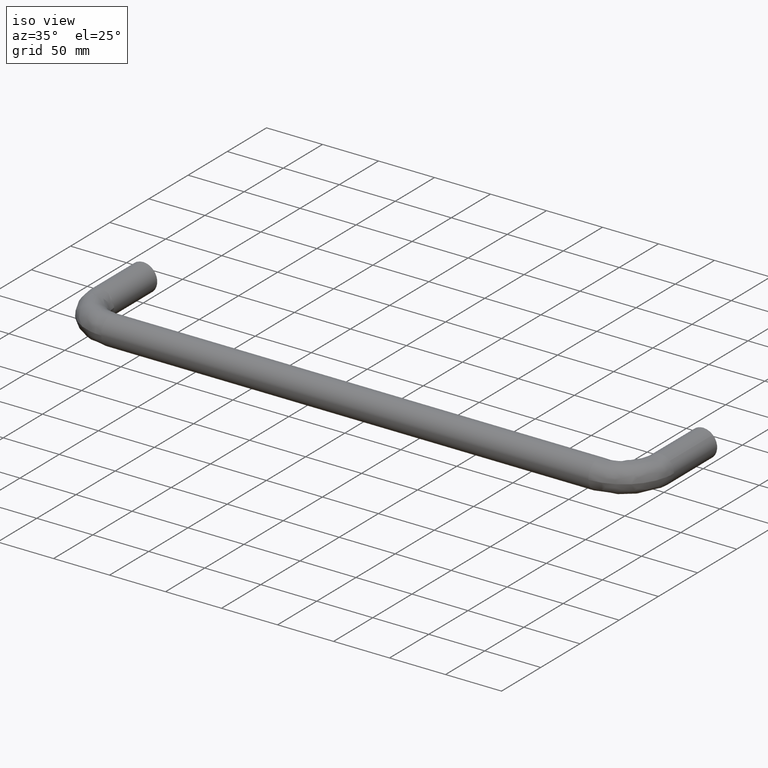
[diagram: clean part render]
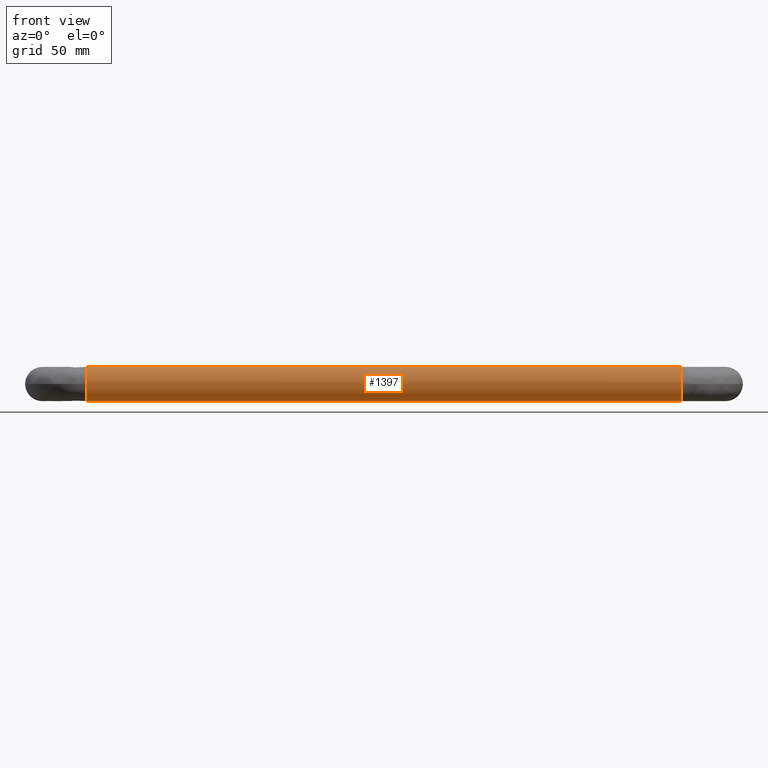
[diagram: tour spotlight — one face highlighted and labeled with its STEP entity id]
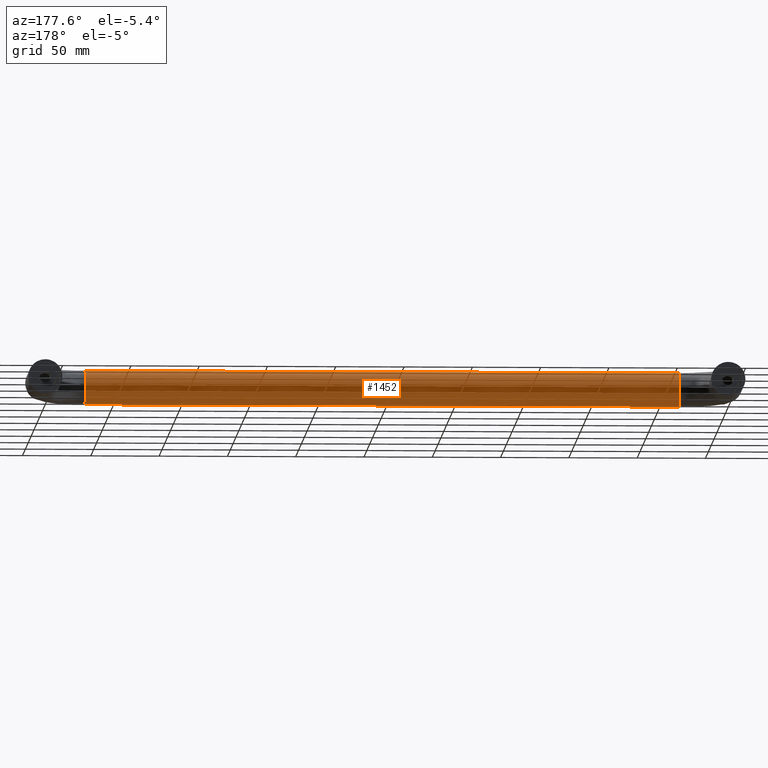
[diagram: tour spotlight — one face highlighted and labeled with its STEP entity id]
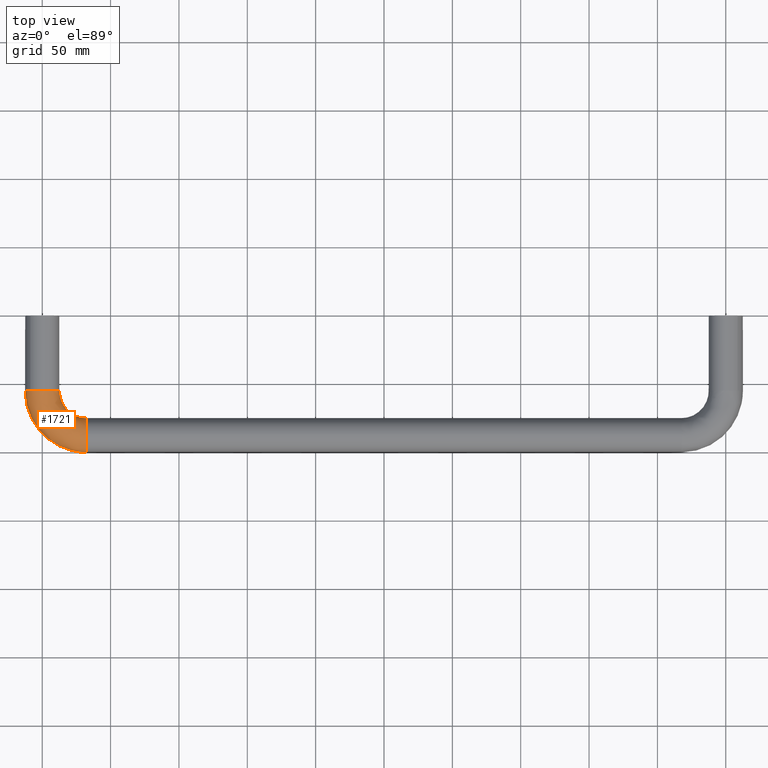
[diagram: tour spotlight — one face highlighted and labeled with its STEP entity id]
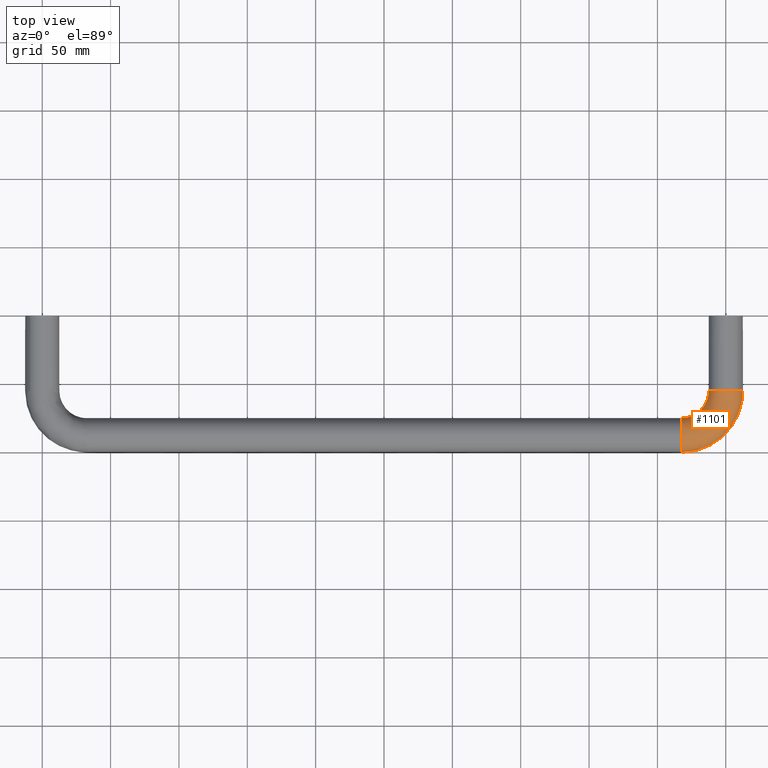
[diagram: tour spotlight — one face highlighted and labeled with its STEP entity id]
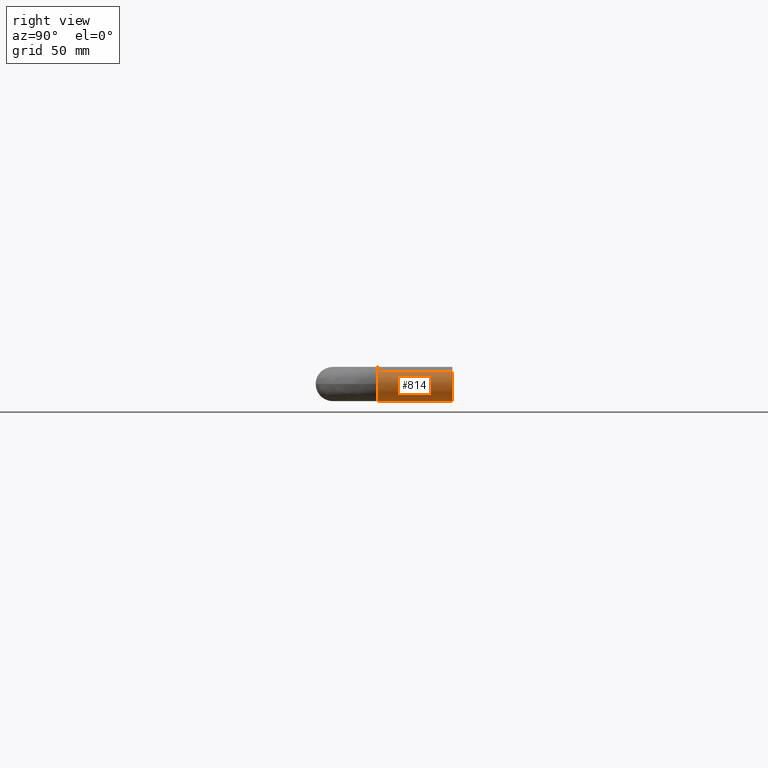
[diagram: tour spotlight — one face highlighted and labeled with its STEP entity id]
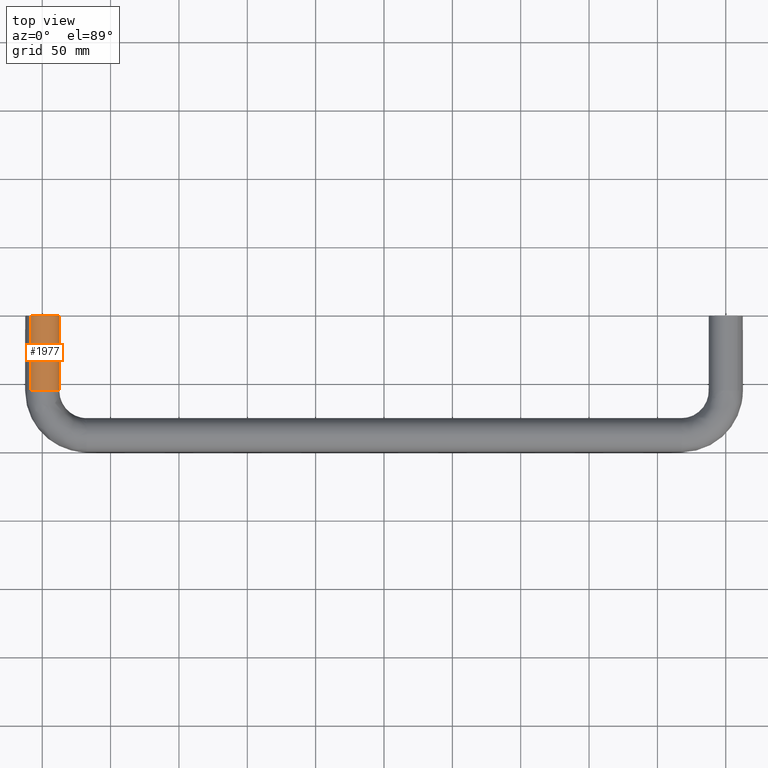
[diagram: tour spotlight — one face highlighted and labeled with its STEP entity id]
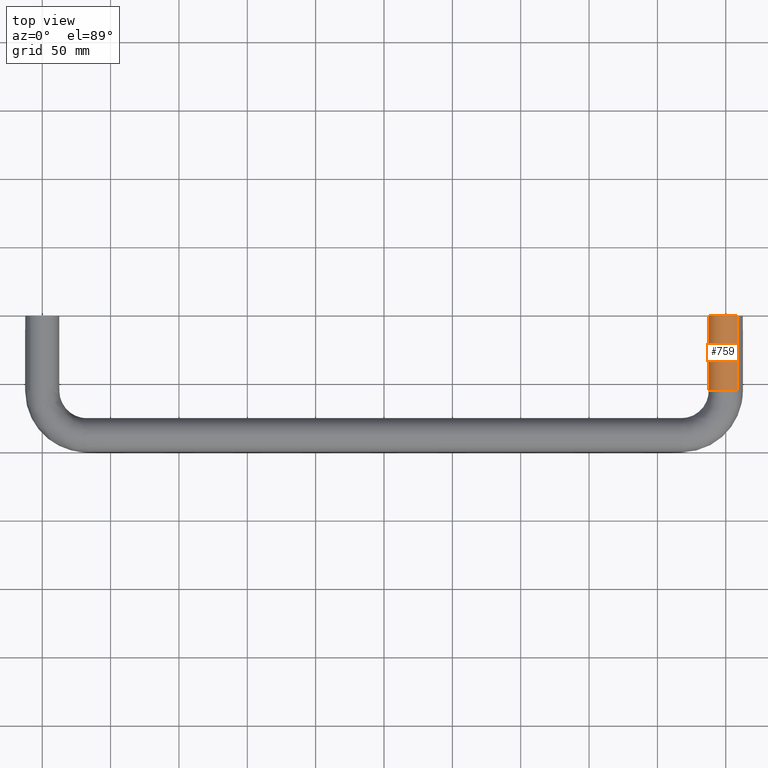
[diagram: tour spotlight — one face highlighted and labeled with its STEP entity id]
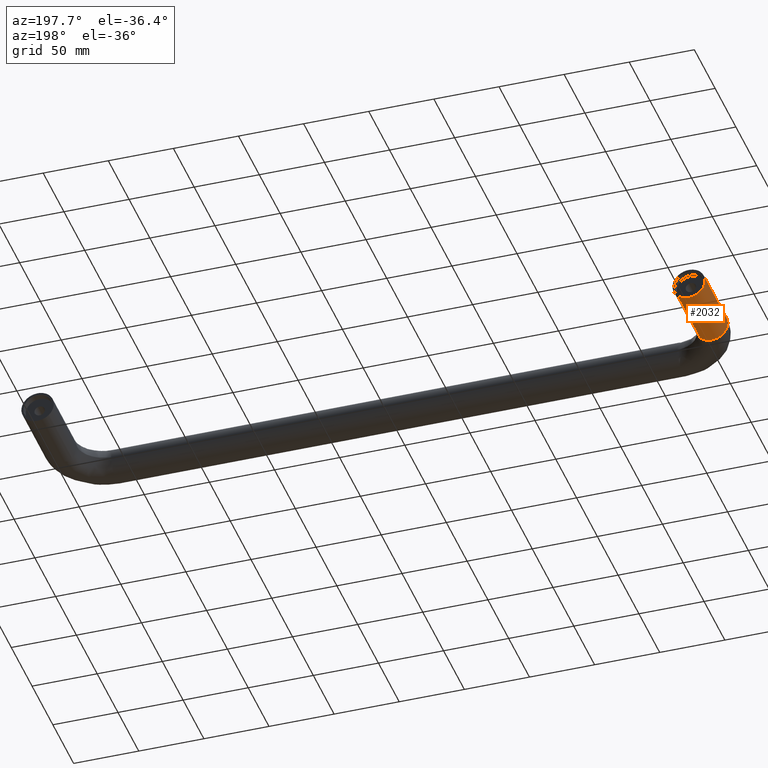
[diagram: tour spotlight — one face highlighted and labeled with its STEP entity id]
A machine part: a face-by-face anatomy tour. The part has 34 B-rep faces; the first image is the clean iso view, then the 8 largest visible faces are spotlighted one at a time (largest first), each with its STEP entity span.

Face 1 — front view, entity #1397. In plain terms, the highlighted face is a freeform B-spline surface patch.
Definition (entity closure, byte-faithful):
#1019=CARTESIAN_POINT('',(467.500095764886620,-99.999999999796216,-1.530758E-015));
#1020=VERTEX_POINT('',#1019);
#1056=CARTESIAN_POINT('',(467.499999999979710,-86.736893253879799,12.476684980155021));
#1057=VERTEX_POINT('',#1056);
#1071=CARTESIAN_POINT('',(467.500000000000000,-87.500000000000000,12.500000000000000));
#1072=VERTEX_POINT('',#1071);
#1073=CARTESIAN_POINT('',(467.499999999979590,-86.736893253879799,12.476684980155014));
#1074=CARTESIAN_POINT('',(467.499999999990050,-87.118090457797678,12.499999999999996));
#1075=CARTESIAN_POINT('',(467.500000000000000,-87.500000000000000,12.500000000000000));
#1083=(BOUNDED_CURVE()B_SPLINE_CURVE(2,(#1073,#1074,#1075),.UNSPECIFIED.,.F.,.U.)B_SPLINE_CURVE_WITH_KNOTS((3,3),(0.985777282953620,1.0),.UNSPECIFIED.)CURVE()GEOMETRIC_REPRESENTATION_ITEM()RATIONAL_B_SPLINE_CURVE((0.976072041615865,0.987502787872039,1.0))REPRESENTATION_ITEM(''));
#1084=EDGE_CURVE('',#1057,#1072,#1083,.T.);
#1086=CARTESIAN_POINT('',(467.500000000000000,-87.500000000000000,12.500000000000000));
#1087=CARTESIAN_POINT('',(467.500047882443480,-99.999999999898094,12.499999999999998));
#1088=CARTESIAN_POINT('',(467.500095764886620,-99.999999999796216,-1.530758E-015));
#1096=(BOUNDED_CURVE()B_SPLINE_CURVE(2,(#1086,#1087,#1088),.UNSPECIFIED.,.F.,.U.)CURVE()GEOMETRIC_REPRESENTATION_ITEM()QUASI_UNIFORM_CURVE()RATIONAL_B_SPLINE_CURVE((1.0,0.707106781186547,1.0))REPRESENTATION_ITEM(''));
#1097=EDGE_CURVE('',#1072,#1020,#1096,.T.);
#1146=CARTESIAN_POINT('',(467.500050805293090,-88.263106746120030,-12.476684980151720));
#1147=VERTEX_POINT('',#1146);
#1148=CARTESIAN_POINT('',(467.500095764886620,-99.999999999796216,-1.530758E-015));
#1149=CARTESIAN_POINT('',(467.500095764886790,-99.999999999796330,-11.758825834394509));
#1150=CARTESIAN_POINT('',(467.500050805293090,-88.263106746120030,-12.476684980151729));
#1158=(BOUNDED_CURVE()B_SPLINE_CURVE(2,(#1148,#1149,#1150),.UNSPECIFIED.,.F.,.U.)B_SPLINE_CURVE_WITH_KNOTS((3,3),(0.0,0.319110616284967),.UNSPECIFIED.)CURVE()GEOMETRIC_REPRESENTATION_ITEM()RATIONAL_B_SPLINE_CURVE((1.0,0.719603993316254,0.976072041612671))REPRESENTATION_ITEM(''));
#1159=EDGE_CURVE('',#1020,#1147,#1158,.T.);
#1317=CARTESIAN_POINT('',(21.624997604057420,-86.736893255814309,12.476684980273340));
#1318=CARTESIAN_POINT('',(21.624997604057427,-99.213578236087642,13.239791724459032));
#1319=CARTESIAN_POINT('',(21.624997604057420,-99.976684980273333,0.763106744185696));
#1320=CARTESIAN_POINT('',(21.624997604057427,-100.739791724459040,-11.713578236087638));
#1321=CARTESIAN_POINT('',(21.624997604057420,-88.263106744185691,-12.476684980273340));
#1322=CARTESIAN_POINT('',(478.646973218907420,-86.736893255814309,12.476684980273340));
#1323=CARTESIAN_POINT('',(478.646973218907480,-99.213578236087642,13.239791724459032));
#1324=CARTESIAN_POINT('',(478.646973218907420,-99.976684980273333,0.763106744185696));
#1325=CARTESIAN_POINT('',(478.646973218907480,-100.739791724459040,-11.713578236087638));
#1326=CARTESIAN_POINT('',(478.646973218907420,-88.263106744185691,-12.476684980273340));
#1334=(BOUNDED_SURFACE()B_SPLINE_SURFACE(2,1,((#1317,#1322),(#1318,#1323),(#1319,#1324),(#1320,#1325),(#1321,#1326)),.UNSPECIFIED.,.F.,.F.,.U.)B_SPLINE_SURFACE_WITH_KNOTS((3,2,3),(2,2),(0.0,20.710678118654752,41.421356237309503),(0.0,457.021975614850020),.UNSPECIFIED.)GEOMETRIC_REPRESENTATION_ITEM()RATIONAL_B_SPLINE_SURFACE(((1.0,1.0),(0.707106781186548,0.707106781186548),(1.0,1.0),(0.707106781186548,0.707106781186548),(1.0,1.0)))REPRESENTATION_ITEM('')SURFACE());
#1335=ORIENTED_EDGE('',*,*,#1084,.F.);
#1336=CARTESIAN_POINT('',(32.499999999944137,-86.736893253879785,12.476684980155021));
#1337=VERTEX_POINT('',#1336);
#1338=CARTESIAN_POINT('',(32.499999999944137,-86.736893253879785,12.476684980155021));
#1339=CARTESIAN_POINT('',(467.499999999979710,-86.736893253879799,12.476684980155021));
#1340=QUASI_UNIFORM_CURVE('',1,(#1338,#1339),.UNSPECIFIED.,.F.,.U.);
#1341=EDGE_CURVE('',#1337,#1057,#1340,.T.);
#1342=ORIENTED_EDGE('',*,*,#1341,.F.);
#1343=CARTESIAN_POINT('',(32.500000000000000,-87.500000000000000,12.500000000000000));
#1344=VERTEX_POINT('',#1343);
#1345=CARTESIAN_POINT('',(32.499999999944130,-86.736893253879785,12.476684980155019));
#1346=CARTESIAN_POINT('',(32.499999999972871,-87.118090457797678,12.500000000000000));
#1347=CARTESIAN_POINT('',(32.500000000000000,-87.500000000000000,12.500000000000000));
#1355=(BOUNDED_CURVE()B_SPLINE_CURVE(2,(#1345,#1346,#1347),.UNSPECIFIED.,.F.,.U.)B_SPLINE_CURVE_WITH_KNOTS((3,3),(0.985777282953620,1.0),.UNSPECIFIED.)CURVE()GEOMETRIC_REPRESENTATION_ITEM()RATIONAL_B_SPLINE_CURVE((0.976072041615864,0.987502787872038,1.0))REPRESENTATION_ITEM(''));
#1356=EDGE_CURVE('',#1337,#1344,#1355,.T.);
#1357=ORIENTED_EDGE('',*,*,#1356,.T.);
#1358=CARTESIAN_POINT('',(32.500077566518513,-99.999999999866304,-1.530758E-015));
#1359=VERTEX_POINT('',#1358);
#1360=CARTESIAN_POINT('',(32.500000000000000,-87.500000000000000,12.500000000000000));
#1361=CARTESIAN_POINT('',(32.500038783259257,-99.999999999933152,12.499999999999998));
#1362=CARTESIAN_POINT('',(32.500077566518513,-99.999999999866304,-1.530758E-015));
#1370=(BOUNDED_CURVE()B_SPLINE_CURVE(2,(#1360,#1361,#1362),.UNSPECIFIED.,.F.,.U.)CURVE()GEOMETRIC_REPRESENTATION_ITEM()QUASI_UNIFORM_CURVE()RATIONAL_B_SPLINE_CURVE((1.0,0.707106781186547,1.0))REPRESENTATION_ITEM(''));
#1371=EDGE_CURVE('',#1344,#1359,#1370,.T.);
#1372=ORIENTED_EDGE('',*,*,#1371,.T.);
#1373=CARTESIAN_POINT('',(32.500041150086830,-88.263106746120087,-12.476684980152861));
#1374=VERTEX_POINT('',#1373);
#1375=CARTESIAN_POINT('',(32.500077566518513,-99.999999999866304,-1.530758E-015));
#1376=CARTESIAN_POINT('',(32.500077566518527,-99.999999999866361,-11.758825834428929));
#1377=CARTESIAN_POINT('',(32.500041150086830,-88.263106746120087,-12.476684980152852));
#1385=(BOUNDED_CURVE()B_SPLINE_CURVE(2,(#1375,#1376,#1377),.UNSPECIFIED.,.F.,.U.)B_SPLINE_CURVE_WITH_KNOTS((3,3),(0.0,0.319110616285650),.UNSPECIFIED.)CURVE()GEOMETRIC_REPRESENTATION_ITEM()RATIONAL_B_SPLINE_CURVE((1.0,0.719603993315654,0.976072041613770))REPRESENTATION_ITEM(''));
#1386=EDGE_CURVE('',#1359,#1374,#1385,.T.);
#1387=ORIENTED_EDGE('',*,*,#1386,.T.);
#1388=CARTESIAN_POINT('',(32.500041150086830,-88.263106746120087,-12.476684980152861));
#1389=CARTESIAN_POINT('',(467.500050805293090,-88.263106746120030,-12.476684980151720));
#1390=QUASI_UNIFORM_CURVE('',1,(#1388,#1389),.UNSPECIFIED.,.F.,.U.);
#1391=EDGE_CURVE('',#1374,#1147,#1390,.T.);
#1392=ORIENTED_EDGE('',*,*,#1391,.T.);
#1393=ORIENTED_EDGE('',*,*,#1159,.F.);
#1394=ORIENTED_EDGE('',*,*,#1097,.F.);
#1395=EDGE_LOOP('',(#1335,#1342,#1357,#1372,#1387,#1392,#1393,#1394));
#1396=FACE_OUTER_BOUND('',#1395,.T.);
#1397=ADVANCED_FACE('',(#1396),#1334,.T.);

Face 2 — auxiliary view, entity #1452. In plain terms, the highlighted face is a freeform B-spline surface patch.
Definition (entity closure, byte-faithful):
#1039=CARTESIAN_POINT('',(467.499999999353520,-75.0,-8.232085E-016));
#1040=VERTEX_POINT('',#1039);
#1056=CARTESIAN_POINT('',(467.499999999979710,-86.736893253879799,12.476684980155021));
#1057=VERTEX_POINT('',#1056);
#1058=CARTESIAN_POINT('',(467.499999999353520,-75.0,-8.232085E-016));
#1059=CARTESIAN_POINT('',(467.499999999657580,-75.0,11.758825834494591));
#1060=CARTESIAN_POINT('',(467.499999999979710,-86.736893253879799,12.476684980155017));
#1068=(BOUNDED_CURVE()B_SPLINE_CURVE(2,(#1058,#1059,#1060),.UNSPECIFIED.,.F.,.U.)B_SPLINE_CURVE_WITH_KNOTS((3,3),(0.666666666666667,0.985777282953620),.UNSPECIFIED.)CURVE()GEOMETRIC_REPRESENTATION_ITEM()RATIONAL_B_SPLINE_CURVE((1.0,0.719603993314509,0.976072041615865))REPRESENTATION_ITEM(''));
#1069=EDGE_CURVE('',#1040,#1057,#1068,.T.);
#1146=CARTESIAN_POINT('',(467.500050805293090,-88.263106746120030,-12.476684980151720));
#1147=VERTEX_POINT('',#1146);
#1161=CARTESIAN_POINT('',(467.500050805293090,-88.263106746120030,-12.476684980151729));
#1162=CARTESIAN_POINT('',(467.500049345070980,-87.881909542151533,-12.500000000003249));
#1163=CARTESIAN_POINT('',(467.500047882120100,-87.499999999898307,-12.500000000003199));
#1164=CARTESIAN_POINT('',(467.499999999353460,-75.000000000000085,-12.500000000001547));
#1165=CARTESIAN_POINT('',(467.499999999353520,-75.0,-8.232085E-016));
#1173=(BOUNDED_CURVE()B_SPLINE_CURVE(2,(#1161,#1162,#1163,#1164,#1165),.UNSPECIFIED.,.F.,.U.)B_SPLINE_CURVE_WITH_KNOTS((3,2,3),(0.319110616284967,0.333333333333333,0.666666666666667),.UNSPECIFIED.)CURVE()GEOMETRIC_REPRESENTATION_ITEM()RATIONAL_B_SPLINE_CURVE((0.976072041612671,0.987502787870293,1.0,0.707106781186547,1.0))REPRESENTATION_ITEM(''));
#1174=EDGE_CURVE('',#1147,#1040,#1173,.T.);
#1336=CARTESIAN_POINT('',(32.499999999944137,-86.736893253879785,12.476684980155021));
#1337=VERTEX_POINT('',#1336);
#1338=CARTESIAN_POINT('',(32.499999999944137,-86.736893253879785,12.476684980155021));
#1339=CARTESIAN_POINT('',(467.499999999979710,-86.736893253879799,12.476684980155021));
#1340=QUASI_UNIFORM_CURVE('',1,(#1338,#1339),.UNSPECIFIED.,.F.,.U.);
#1341=EDGE_CURVE('',#1337,#1057,#1340,.T.);
#1373=CARTESIAN_POINT('',(32.500041150086830,-88.263106746120087,-12.476684980152861));
#1374=VERTEX_POINT('',#1373);
#1388=CARTESIAN_POINT('',(32.500041150086830,-88.263106746120087,-12.476684980152861));
#1389=CARTESIAN_POINT('',(467.500050805293090,-88.263106746120030,-12.476684980151720));
#1390=QUASI_UNIFORM_CURVE('',1,(#1388,#1389),.UNSPECIFIED.,.F.,.U.);
#1391=EDGE_CURVE('',#1374,#1147,#1390,.T.);
#1398=CARTESIAN_POINT('',(21.624997604057420,-88.263106744185691,-12.476684980273340));
#1399=CARTESIAN_POINT('',(21.624997604057427,-75.786421763912358,-13.239791724459032));
#1400=CARTESIAN_POINT('',(21.624997604057420,-75.023315019726667,-0.763106744185696));
#1401=CARTESIAN_POINT('',(21.624997604057427,-74.260208275540990,11.713578236087638));
#1402=CARTESIAN_POINT('',(21.624997604057420,-86.736893255814309,12.476684980273340));
#1403=CARTESIAN_POINT('',(478.646973218907420,-88.263106744185691,-12.476684980273340));
#1404=CARTESIAN_POINT('',(478.646973218907480,-75.786421763912358,-13.239791724459032));
#1405=CARTESIAN_POINT('',(478.646973218907420,-75.023315019726667,-0.763106744185696));
#1406=CARTESIAN_POINT('',(478.646973218907480,-74.260208275540990,11.713578236087638));
#1407=CARTESIAN_POINT('',(478.646973218907420,-86.736893255814309,12.476684980273340));
#1415=(BOUNDED_SURFACE()B_SPLINE_SURFACE(2,1,((#1398,#1403),(#1399,#1404),(#1400,#1405),(#1401,#1406),(#1402,#1407)),.UNSPECIFIED.,.F.,.F.,.U.)B_SPLINE_SURFACE_WITH_KNOTS((3,2,3),(2,2),(0.0,20.710678118654759,41.421356237309517),(0.0,457.021975614850020),.UNSPECIFIED.)GEOMETRIC_REPRESENTATION_ITEM()RATIONAL_B_SPLINE_SURFACE(((1.0,1.0),(0.707106781186548,0.707106781186548),(1.0,1.0),(0.707106781186548,0.707106781186548),(1.0,1.0)))REPRESENTATION_ITEM('')SURFACE());
#1416=ORIENTED_EDGE('',*,*,#1069,.F.);
#1417=ORIENTED_EDGE('',*,*,#1174,.F.);
#1418=ORIENTED_EDGE('',*,*,#1391,.F.);
#1419=CARTESIAN_POINT('',(32.499999998223998,-75.0,-8.839280E-016));
#1420=VERTEX_POINT('',#1419);
#1421=CARTESIAN_POINT('',(32.500041150086822,-88.263106746120101,-12.476684980152861));
#1422=CARTESIAN_POINT('',(32.500039967334160,-87.881909542168998,-12.500000000002128));
#1423=CARTESIAN_POINT('',(32.500038782371277,-87.499999999933280,-12.500000000002100));
#1424=CARTESIAN_POINT('',(32.499999998224013,-75.000000000000057,-12.500000000001014));
#1425=CARTESIAN_POINT('',(32.499999998223998,-75.0,-8.839280E-016));
#1433=(BOUNDED_CURVE()B_SPLINE_CURVE(2,(#1421,#1422,#1423,#1424,#1425),.UNSPECIFIED.,.F.,.U.)B_SPLINE_CURVE_WITH_KNOTS((3,2,3),(0.319110616285650,0.333333333333333,0.666666666666667),.UNSPECIFIED.)CURVE()GEOMETRIC_REPRESENTATION_ITEM()RATIONAL_B_SPLINE_CURVE((0.976072041613770,0.987502787870893,1.0,0.707106781186547,1.0))REPRESENTATION_ITEM(''));
#1434=EDGE_CURVE('',#1374,#1420,#1433,.T.);
#1435=ORIENTED_EDGE('',*,*,#1434,.T.);
#1436=CARTESIAN_POINT('',(32.499999998223998,-75.0,-8.839280E-016));
#1437=CARTESIAN_POINT('',(32.499999999059348,-74.999999999999986,11.758825834494576));
#1438=CARTESIAN_POINT('',(32.499999999944130,-86.736893253879785,12.476684980155019));
#1446=(BOUNDED_CURVE()B_SPLINE_CURVE(2,(#1436,#1437,#1438),.UNSPECIFIED.,.F.,.U.)B_SPLINE_CURVE_WITH_KNOTS((3,3),(0.666666666666667,0.985777282953620),.UNSPECIFIED.)CURVE()GEOMETRIC_REPRESENTATION_ITEM()RATIONAL_B_SPLINE_CURVE((1.0,0.719603993314509,0.976072041615864))REPRESENTATION_ITEM(''));
#1447=EDGE_CURVE('',#1420,#1337,#1446,.T.);
#1448=ORIENTED_EDGE('',*,*,#1447,.T.);
#1449=ORIENTED_EDGE('',*,*,#1341,.T.);
#1450=EDGE_LOOP('',(#1416,#1417,#1418,#1435,#1448,#1449));
#1451=FACE_OUTER_BOUND('',#1450,.T.);
#1452=ADVANCED_FACE('',(#1451),#1415,.T.);

Face 3 — top view, entity #1721. In plain terms, the highlighted face is a freeform B-spline surface patch.
Definition (entity closure, byte-faithful):
#1336=CARTESIAN_POINT('',(32.499999999944137,-86.736893253879785,12.476684980155021));
#1337=VERTEX_POINT('',#1336);
#1343=CARTESIAN_POINT('',(32.500000000000000,-87.500000000000000,12.500000000000000));
#1344=VERTEX_POINT('',#1343);
#1345=CARTESIAN_POINT('',(32.499999999944130,-86.736893253879785,12.476684980155019));
#1346=CARTESIAN_POINT('',(32.499999999972871,-87.118090457797678,12.500000000000000));
#1347=CARTESIAN_POINT('',(32.500000000000000,-87.500000000000000,12.500000000000000));
#1355=(BOUNDED_CURVE()B_SPLINE_CURVE(2,(#1345,#1346,#1347),.UNSPECIFIED.,.F.,.U.)B_SPLINE_CURVE_WITH_KNOTS((3,3),(0.985777282953620,1.0),.UNSPECIFIED.)CURVE()GEOMETRIC_REPRESENTATION_ITEM()RATIONAL_B_SPLINE_CURVE((0.976072041615864,0.987502787872038,1.0))REPRESENTATION_ITEM(''));
#1356=EDGE_CURVE('',#1337,#1344,#1355,.T.);
#1358=CARTESIAN_POINT('',(32.500077566518513,-99.999999999866304,-1.530758E-015));
#1359=VERTEX_POINT('',#1358);
#1360=CARTESIAN_POINT('',(32.500000000000000,-87.500000000000000,12.500000000000000));
#1361=CARTESIAN_POINT('',(32.500038783259257,-99.999999999933152,12.499999999999998));
#1362=CARTESIAN_POINT('',(32.500077566518513,-99.999999999866304,-1.530758E-015));
#1370=(BOUNDED_CURVE()B_SPLINE_CURVE(2,(#1360,#1361,#1362),.UNSPECIFIED.,.F.,.U.)CURVE()GEOMETRIC_REPRESENTATION_ITEM()QUASI_UNIFORM_CURVE()RATIONAL_B_SPLINE_CURVE((1.0,0.707106781186547,1.0))REPRESENTATION_ITEM(''));
#1371=EDGE_CURVE('',#1344,#1359,#1370,.T.);
#1419=CARTESIAN_POINT('',(32.499999998223998,-75.0,-8.839280E-016));
#1420=VERTEX_POINT('',#1419);
#1436=CARTESIAN_POINT('',(32.499999998223998,-75.0,-8.839280E-016));
#1437=CARTESIAN_POINT('',(32.499999999059348,-74.999999999999986,11.758825834494576));
#1438=CARTESIAN_POINT('',(32.499999999944130,-86.736893253879785,12.476684980155019));
#1446=(BOUNDED_CURVE()B_SPLINE_CURVE(2,(#1436,#1437,#1438),.UNSPECIFIED.,.F.,.U.)B_SPLINE_CURVE_WITH_KNOTS((3,3),(0.666666666666667,0.985777282953620),.UNSPECIFIED.)CURVE()GEOMETRIC_REPRESENTATION_ITEM()RATIONAL_B_SPLINE_CURVE((1.0,0.719603993314509,0.976072041615864))REPRESENTATION_ITEM(''));
#1447=EDGE_CURVE('',#1420,#1337,#1446,.T.);
#1614=CARTESIAN_POINT('',(-12.392236807027519,-51.887593461361078,-0.349459221148228));
#1615=CARTESIAN_POINT('',(-15.971075581043571,-103.507481719133300,-0.349459221148228));
#1616=CARTESIAN_POINT('',(35.646111106952574,-99.889887334484470,-0.349459221148228));
#1617=CARTESIAN_POINT('',(-12.392236807027521,-51.887593461361078,-0.175747192080917));
#1618=CARTESIAN_POINT('',(-15.971075581043571,-103.507481719133300,-0.175747192080917));
#1619=CARTESIAN_POINT('',(35.646111106952574,-99.889887334484470,-0.175747192080917));
#1620=CARTESIAN_POINT('',(-12.392236807027531,-51.887593461361107,12.499999999999996));
#1621=CARTESIAN_POINT('',(-15.971075581043580,-103.507481719133300,12.499999999999995));
#1622=CARTESIAN_POINT('',(35.646111106952574,-99.889887334484484,12.499999999999995));
#1623=CARTESIAN_POINT('',(0.077828972702343,-52.752150833205214,12.500000000000000));
#1624=CARTESIAN_POINT('',(-2.506887919642578,-90.033181241596253,12.499999999999996));
#1625=CARTESIAN_POINT('',(34.772191355021320,-87.420474186016563,12.500000000000000));
#1626=CARTESIAN_POINT('',(12.547894752432207,-53.616708205049378,12.500000000000000));
#1627=CARTESIAN_POINT('',(10.957299741758410,-76.558880764059268,12.500000000000000));
#1628=CARTESIAN_POINT('',(33.898271603090024,-74.951061037548655,12.499999999999996));
#1629=CARTESIAN_POINT('',(12.547894752432210,-53.616708205049363,-0.175747192080917));
#1630=CARTESIAN_POINT('',(10.957299741758412,-76.558880764059225,-0.175747192080917));
#1631=CARTESIAN_POINT('',(33.898271603090038,-74.951061037548669,-0.175747192080917));
#1632=CARTESIAN_POINT('',(12.547894752432205,-53.616708205049363,-0.349459221148230));
#1633=CARTESIAN_POINT('',(10.957299741758412,-76.558880764059211,-0.349459221148230));
#1634=CARTESIAN_POINT('',(33.898271603090038,-74.951061037548655,-0.349459221148230));
#1642=(BOUNDED_SURFACE()B_SPLINE_SURFACE(2,2,((#1614,#1617,#1620,#1623,#1626,#1629,#1632),(#1615,#1618,#1621,#1624,#1627,#1630,#1633),(#1616,#1619,#1622,#1625,#1628,#1631,#1634)),.UNSPECIFIED.,.F.,.F.,.U.)B_SPLINE_SURFACE_WITH_KNOTS((3,3),(3,1,2,1,3),(0.0,82.006278072936880),(0.0,0.414213562373096,21.124891681027862,41.835569799682617,42.249783362055723),.UNSPECIFIED.)GEOMETRIC_REPRESENTATION_ITEM()RATIONAL_B_SPLINE_SURFACE(((0.932283909603369,0.926885957839421,0.651590417878037,0.921488006075472,0.651590417878037,0.926885957839421,0.932283909603369),(0.608398006678249,0.604875363994510,0.425220587123830,0.601352721310771,0.425220587123830,0.604875363994510,0.608398006678249),(0.921984993315845,0.916646672585714,0.644392315349019,0.911308351855582,0.644392315349019,0.916646672585714,0.921984993315845)))REPRESENTATION_ITEM('')SURFACE());
#1643=CARTESIAN_POINT('',(-12.499999999999989,-55.000000000535692,-1.530758E-015));
#1644=VERTEX_POINT('',#1643);
#1645=CARTESIAN_POINT('',(-12.499999999999998,-55.000000000535699,-1.530758E-015));
#1646=CARTESIAN_POINT('',(-12.499999999464299,-100.000077566551940,-1.530758E-015));
#1647=CARTESIAN_POINT('',(32.500077566518513,-99.999999999866304,-1.530758E-015));
#1655=(BOUNDED_CURVE()B_SPLINE_CURVE(2,(#1645,#1646,#1647),.UNSPECIFIED.,.F.,.U.)B_SPLINE_CURVE_WITH_KNOTS((3,3),(-1.747842683656804,-0.278271349074432),.UNSPECIFIED.)CURVE()GEOMETRIC_REPRESENTATION_ITEM()RATIONAL_B_SPLINE_CURVE((0.893710737959599,0.628667701523981,0.884455659746061))REPRESENTATION_ITEM(''));
#1656=EDGE_CURVE('',#1644,#1359,#1655,.T.);
#1657=ORIENTED_EDGE('',*,*,#1656,.T.);
#1658=ORIENTED_EDGE('',*,*,#1371,.F.);
#1659=ORIENTED_EDGE('',*,*,#1356,.F.);
#1660=ORIENTED_EDGE('',*,*,#1447,.F.);
#1661=CARTESIAN_POINT('',(12.500000000000000,-55.000000001631861,-8.843090E-016));
#1662=VERTEX_POINT('',#1661);
#1663=CARTESIAN_POINT('',(12.500000000000007,-55.000000001631854,-1.768618E-015));
#1664=CARTESIAN_POINT('',(12.500000001631864,-74.999999998223998,-1.737922E-015));
#1665=CARTESIAN_POINT('',(32.499999998224006,-75.0,-1.767856E-015));
#1673=(BOUNDED_CURVE()B_SPLINE_CURVE(2,(#1663,#1664,#1665),.UNSPECIFIED.,.F.,.U.)B_SPLINE_CURVE_WITH_KNOTS((3,3),(-1.747842683584010,-0.278273131038123),.UNSPECIFIED.)CURVE()GEOMETRIC_REPRESENTATION_ITEM()RATIONAL_B_SPLINE_CURVE((0.893710737933342,0.628668022920892,0.884455039423276))REPRESENTATION_ITEM(''));
#1674=EDGE_CURVE('',#1662,#1420,#1673,.T.);
#1675=ORIENTED_EDGE('',*,*,#1674,.F.);
#1676=CARTESIAN_POINT('',(0.0,-55.0,12.500000000000000));
#1677=VERTEX_POINT('',#1676);
#1678=CARTESIAN_POINT('',(12.500000000000000,-55.000000001631861,-8.843090E-016));
#1679=CARTESIAN_POINT('',(12.499999999999998,-55.000000000815930,12.499999999999998));
#1680=CARTESIAN_POINT('',(0.0,-55.0,12.500000000000000));
#1688=(BOUNDED_CURVE()B_SPLINE_CURVE(2,(#1678,#1679,#1680),.UNSPECIFIED.,.F.,.U.)B_SPLINE_CURVE_WITH_KNOTS((3,3),(0.666666666666667,1.0),.UNSPECIFIED.)CURVE()GEOMETRIC_REPRESENTATION_ITEM()RATIONAL_B_SPLINE_CURVE((1.0,0.707106781186547,1.0))REPRESENTATION_ITEM(''));
#1689=EDGE_CURVE('',#1662,#1677,#1688,.T.);
#1690=ORIENTED_EDGE('',*,*,#1689,.T.);
#1691=CARTESIAN_POINT('',(-8.604431018127482,-55.000000000257970,9.067180755575738));
#1692=VERTEX_POINT('',#1691);
#1693=CARTESIAN_POINT('',(0.0,-55.0,12.500000000000000));
#1694=CARTESIAN_POINT('',(-4.986993383397497,-55.000000000106866,12.499999999999996));
#1695=CARTESIAN_POINT('',(-8.604431018127553,-55.000000000257934,9.067180755575810));
#1703=(BOUNDED_CURVE()B_SPLINE_CURVE(2,(#1693,#1694,#1695),.UNSPECIFIED.,.F.,.U.)B_SPLINE_CURVE_WITH_KNOTS((3,3),(0.0,0.484198028206789),.UNSPECIFIED.)CURVE()GEOMETRIC_REPRESENTATION_ITEM()RATIONAL_B_SPLINE_CURVE((1.0,0.858181680975387,0.853699662821412))REPRESENTATION_ITEM(''));
#1704=EDGE_CURVE('',#1677,#1692,#1703,.T.);
#1705=ORIENTED_EDGE('',*,*,#1704,.T.);
#1706=CARTESIAN_POINT('',(-8.604431018127553,-55.000000000257934,9.067180755575810));
#1707=CARTESIAN_POINT('',(-12.500000000000000,-55.000000000420613,5.370424786498387));
#1708=CARTESIAN_POINT('',(-12.499999999999989,-55.000000000535692,-1.530758E-015));
#1716=(BOUNDED_CURVE()B_SPLINE_CURVE(2,(#1706,#1707,#1708),.UNSPECIFIED.,.F.,.U.)B_SPLINE_CURVE_WITH_KNOTS((3,3),(0.484198028206789,1.0),.UNSPECIFIED.)CURVE()GEOMETRIC_REPRESENTATION_ITEM()RATIONAL_B_SPLINE_CURVE((0.853699662821412,0.848925100211161,1.0))REPRESENTATION_ITEM(''));
#1717=EDGE_CURVE('',#1692,#1644,#1716,.T.);
#1718=ORIENTED_EDGE('',*,*,#1717,.T.);
#1719=EDGE_LOOP('',(#1657,#1658,#1659,#1660,#1675,#1690,#1705,#1718));
#1720=FACE_OUTER_BOUND('',#1719,.T.);
#1721=ADVANCED_FACE('',(#1720),#1642,.T.);

Face 4 — top view, entity #1101. In plain terms, the highlighted face is a freeform B-spline surface patch.
Definition (entity closure, byte-faithful):
#700=CARTESIAN_POINT('',(487.500000000000000,-55.000000000781917,-8.731620E-016));
#701=VERTEX_POINT('',#700);
#715=CARTESIAN_POINT('',(500.0,-55.0,12.500000000000000));
#716=VERTEX_POINT('',#715);
#717=CARTESIAN_POINT('',(487.500000000000000,-55.000000000781917,-8.731620E-016));
#718=CARTESIAN_POINT('',(487.500000000000060,-55.000000000390955,12.499999999999998));
#719=CARTESIAN_POINT('',(500.0,-55.0,12.500000000000000));
#727=(BOUNDED_CURVE()B_SPLINE_CURVE(2,(#717,#718,#719),.UNSPECIFIED.,.F.,.U.)B_SPLINE_CURVE_WITH_KNOTS((3,3),(0.666666666666667,1.0),.UNSPECIFIED.)CURVE()GEOMETRIC_REPRESENTATION_ITEM()RATIONAL_B_SPLINE_CURVE((1.0,0.707106781186547,1.0))REPRESENTATION_ITEM(''));
#728=EDGE_CURVE('',#701,#716,#727,.T.);
#730=CARTESIAN_POINT('',(508.604431018473410,-55.000000000235659,9.067180755247492));
#731=VERTEX_POINT('',#730);
#732=CARTESIAN_POINT('',(500.0,-55.0,12.500000000000000));
#733=CARTESIAN_POINT('',(504.986993383673910,-55.000000000097607,12.500000000000000));
#734=CARTESIAN_POINT('',(508.604431018473580,-55.000000000235609,9.067180755247600));
#742=(BOUNDED_CURVE()B_SPLINE_CURVE(2,(#732,#733,#734),.UNSPECIFIED.,.F.,.U.)B_SPLINE_CURVE_WITH_KNOTS((3,3),(0.0,0.484198028229815),.UNSPECIFIED.)CURVE()GEOMETRIC_REPRESENTATION_ITEM()RATIONAL_B_SPLINE_CURVE((1.0,0.858181680968642,0.853699662820985))REPRESENTATION_ITEM(''));
#743=EDGE_CURVE('',#716,#731,#742,.T.);
#778=CARTESIAN_POINT('',(512.500000000000000,-55.000000000489337,-1.530758E-015));
#779=VERTEX_POINT('',#778);
#799=CARTESIAN_POINT('',(508.604431018473460,-55.000000000235609,9.067180755247600));
#800=CARTESIAN_POINT('',(512.500000000000000,-55.000000000384219,5.370424786215978));
#801=CARTESIAN_POINT('',(512.500000000000000,-55.000000000489337,-1.530758E-015));
#809=(BOUNDED_CURVE()B_SPLINE_CURVE(2,(#799,#800,#801),.UNSPECIFIED.,.F.,.U.)B_SPLINE_CURVE_WITH_KNOTS((3,3),(0.484198028229815,1.0),.UNSPECIFIED.)CURVE()GEOMETRIC_REPRESENTATION_ITEM()RATIONAL_B_SPLINE_CURVE((0.853699662820985,0.848925100217905,1.0))REPRESENTATION_ITEM(''));
#810=EDGE_CURVE('',#731,#779,#809,.T.);
#976=CARTESIAN_POINT('',(463.993650892548710,-99.863186644917164,-0.349459221148228));
#977=CARTESIAN_POINT('',(470.423751321872660,-100.365740711787880,-0.349459221148228));
#978=CARTESIAN_POINT('',(476.736146844641330,-99.041952630012062,-0.349459221148228));
#979=CARTESIAN_POINT('',(514.089081978320790,-91.208576192975286,-0.349459221148228));
#980=CARTESIAN_POINT('',(512.458932902165430,-53.077930204548828,-0.349459221148228));
#981=CARTESIAN_POINT('',(463.993650892548710,-99.863186644917164,-0.175747192080917));
#982=CARTESIAN_POINT('',(470.423751321872770,-100.365740711787860,-0.175747192080917));
#983=CARTESIAN_POINT('',(476.736146844641330,-99.041952630012034,-0.175747192080917));
#984=CARTESIAN_POINT('',(514.089081978320680,-91.208576192975286,-0.175747192080917));
#985=CARTESIAN_POINT('',(512.458932902165430,-53.077930204548828,-0.175747192080917));
#986=CARTESIAN_POINT('',(463.993650892548770,-99.863186644917164,12.499999999999991));
#987=CARTESIAN_POINT('',(470.423751321872660,-100.365740711787860,12.499999999999993));
#988=CARTESIAN_POINT('',(476.736146844641330,-99.041952630012020,12.499999999999995));
#989=CARTESIAN_POINT('',(514.089081978320790,-91.208576192975301,12.499999999999995));
#990=CARTESIAN_POINT('',(512.458932902165320,-53.077930204548828,12.499999999999995));
#991=CARTESIAN_POINT('',(464.967636755729640,-87.401190354662404,12.499999999999993));
#992=CARTESIAN_POINT('',(469.611598176908100,-87.764146069624587,12.499999999999993));
#993=CARTESIAN_POINT('',(474.170550498907570,-86.808076899453127,12.500000000000000));
#994=CARTESIAN_POINT('',(501.147670317676100,-81.150638361593266,12.499999999999996));
#995=CARTESIAN_POINT('',(499.970340429341720,-53.611838481063039,12.500000000000000));
#996=CARTESIAN_POINT('',(465.941622618910460,-74.939194064407630,12.499999999999996));
#997=CARTESIAN_POINT('',(468.799445031943380,-75.162551427461267,12.499999999999998));
#998=CARTESIAN_POINT('',(471.604954153173880,-74.574201168894220,12.499999999999996));
#999=CARTESIAN_POINT('',(488.206258657031360,-71.092700530211246,12.499999999999998));
#1000=CARTESIAN_POINT('',(487.481747956517950,-54.145746757577257,12.499999999999996));
#1001=CARTESIAN_POINT('',(465.941622618910570,-74.939194064407630,-0.175747192080917));
#1002=CARTESIAN_POINT('',(468.799445031943430,-75.162551427461295,-0.175747192080917));
#1003=CARTESIAN_POINT('',(471.604954153173940,-74.574201168894234,-0.175747192080917));
#1004=CARTESIAN_POINT('',(488.206258657031470,-71.092700530211246,-0.175747192080917));
#1005=CARTESIAN_POINT('',(487.481747956517950,-54.145746757577271,-0.175747192080917));
#1006=CARTESIAN_POINT('',(465.941622618910400,-74.939194064407644,-0.349459221148230));
#1007=CARTESIAN_POINT('',(468.799445031943380,-75.162551427461281,-0.349459221148230));
#1008=CARTESIAN_POINT('',(471.604954153173990,-74.574201168894248,-0.349459221148230));
#1009=CARTESIAN_POINT('',(488.206258657031470,-71.092700530211260,-0.349459221148230));
#1010=CARTESIAN_POINT('',(487.481747956518060,-54.145746757577271,-0.349459221148230));
#1018=(BOUNDED_SURFACE()B_SPLINE_SURFACE(2,2,((#976,#981,#986,#991,#996,#1001,#1006),(#977,#982,#987,#992,#997,#1002,#1007),(#978,#983,#988,#993,#998,#1003,#1008),(#979,#984,#989,#994,#999,#1004,#1009),(#980,#985,#990,#995,#1000,#1005,#1010)),.UNSPECIFIED.,.F.,.F.,.U.)B_SPLINE_SURFACE_WITH_KNOTS((3,2,3),(3,1,2,1,3),(0.0,13.905091249418451,79.957474205394348),(0.0,0.414213562373095,21.124891681027840,41.835569799682567,42.249783362055673),.UNSPECIFIED.)GEOMETRIC_REPRESENTATION_ITEM()RATIONAL_B_SPLINE_SURFACE(((0.931895286954577,0.926499585327406,0.651318802341702,0.921103883700236,0.651318802341702,0.926499585327406,0.931895286954577),(0.961163435269853,0.955598270187185,0.671774850971116,0.950033105104517,0.671774850971116,0.955598270187185,0.961163435269854),(1.011715728752538,1.005857864376269,0.707106781186548,1.0,0.707106781186548,1.005857864376269,1.011715728752538),(0.771580702773416,0.767113227391012,0.539271982888400,0.762645752008607,0.539271982888400,0.767113227391012,0.771580702773416),(1.011715728752538,1.005857864376269,0.707106781186548,1.0,0.707106781186548,1.005857864376269,1.011715728752538)))REPRESENTATION_ITEM('')SURFACE());
#1019=CARTESIAN_POINT('',(467.500095764886620,-99.999999999796216,-1.530758E-015));
#1020=VERTEX_POINT('',#1019);
#1021=CARTESIAN_POINT('',(467.500095764886680,-99.999999999796216,-1.530758E-015));
#1022=CARTESIAN_POINT('',(472.167808975484090,-99.999990066400898,-1.530758E-015));
#1023=CARTESIAN_POINT('',(476.736146844641330,-99.041952629921667,-1.530758E-015));
#1024=CARTESIAN_POINT('',(512.499999999602550,-91.541826506036799,-1.530758E-015));
#1025=CARTESIAN_POINT('',(512.500000000000000,-55.000000000489337,-1.530758E-015));
#1033=(BOUNDED_CURVE()B_SPLINE_CURVE(2,(#1021,#1022,#1023,#1024,#1025),.UNSPECIFIED.,.F.,.U.)B_SPLINE_CURVE_WITH_KNOTS((3,2,3),(-2.308970305121112,-2.0,-0.065551411412067),.UNSPECIFIED.)CURVE()GEOMETRIC_REPRESENTATION_ITEM()RATIONAL_B_SPLINE_CURVE((0.937993818261643,0.963332292788154,1.0,0.770425204988850,0.984951048162383))REPRESENTATION_ITEM(''));
#1034=EDGE_CURVE('',#1020,#779,#1033,.T.);
#1035=ORIENTED_EDGE('',*,*,#1034,.T.);
#1036=ORIENTED_EDGE('',*,*,#810,.F.);
#1037=ORIENTED_EDGE('',*,*,#743,.F.);
#1038=ORIENTED_EDGE('',*,*,#728,.F.);
#1039=CARTESIAN_POINT('',(467.499999999353520,-75.0,-8.232085E-016));
#1040=VERTEX_POINT('',#1039);
#1041=CARTESIAN_POINT('',(467.499999999353410,-74.999999999999986,-1.646417E-015));
#1042=CARTESIAN_POINT('',(469.574560714452330,-75.000000000067061,-1.701537E-015));
#1043=CARTESIAN_POINT('',(471.604954153173880,-74.574201168894234,-1.776357E-015));
#1044=CARTESIAN_POINT('',(487.499999999365000,-71.240811780575328,-1.190627E-015));
#1045=CARTESIAN_POINT('',(487.500000000000060,-55.000000000781931,-1.746324E-015));
#1053=(BOUNDED_CURVE()B_SPLINE_CURVE(2,(#1041,#1042,#1043,#1044,#1045),.UNSPECIFIED.,.F.,.U.)B_SPLINE_CURVE_WITH_KNOTS((3,2,3),(-2.308973391286646,-2.0,-0.065551411455042),.UNSPECIFIED.)CURVE()GEOMETRIC_REPRESENTATION_ITEM()RATIONAL_B_SPLINE_CURVE((0.937993312073502,0.963331926530904,1.0,0.770425204993950,0.984951048152851))REPRESENTATION_ITEM(''));
#1054=EDGE_CURVE('',#1040,#701,#1053,.T.);
#1055=ORIENTED_EDGE('',*,*,#1054,.F.);
#1056=CARTESIAN_POINT('',(467.499999999979710,-86.736893253879799,12.476684980155021));
#1057=VERTEX_POINT('',#1056);
#1058=CARTESIAN_POINT('',(467.499999999353520,-75.0,-8.232085E-016));
#1059=CARTESIAN_POINT('',(467.499999999657580,-75.0,11.758825834494591));
#1060=CARTESIAN_POINT('',(467.499999999979710,-86.736893253879799,12.476684980155017));
#1068=(BOUNDED_CURVE()B_SPLINE_CURVE(2,(#1058,#1059,#1060),.UNSPECIFIED.,.F.,.U.)B_SPLINE_CURVE_WITH_KNOTS((3,3),(0.666666666666667,0.985777282953620),.UNSPECIFIED.)CURVE()GEOMETRIC_REPRESENTATION_ITEM()RATIONAL_B_SPLINE_CURVE((1.0,0.719603993314509,0.976072041615865))REPRESENTATION_ITEM(''));
#1069=EDGE_CURVE('',#1040,#1057,#1068,.T.);
#1070=ORIENTED_EDGE('',*,*,#1069,.T.);
#1071=CARTESIAN_POINT('',(467.500000000000000,-87.500000000000000,12.500000000000000));
#1072=VERTEX_POINT('',#1071);
#1073=CARTESIAN_POINT('',(467.499999999979590,-86.736893253879799,12.476684980155014));
#1074=CARTESIAN_POINT('',(467.499999999990050,-87.118090457797678,12.499999999999996));
#1075=CARTESIAN_POINT('',(467.500000000000000,-87.500000000000000,12.500000000000000));
#1083=(BOUNDED_CURVE()B_SPLINE_CURVE(2,(#1073,#1074,#1075),.UNSPECIFIED.,.F.,.U.)B_SPLINE_CURVE_WITH_KNOTS((3,3),(0.985777282953620,1.0),.UNSPECIFIED.)CURVE()GEOMETRIC_REPRESENTATION_ITEM()RATIONAL_B_SPLINE_CURVE((0.976072041615865,0.987502787872039,1.0))REPRESENTATION_ITEM(''));
#1084=EDGE_CURVE('',#1057,#1072,#1083,.T.);
#1085=ORIENTED_EDGE('',*,*,#1084,.T.);
#1086=CARTESIAN_POINT('',(467.500000000000000,-87.500000000000000,12.500000000000000));
#1087=CARTESIAN_POINT('',(467.500047882443480,-99.999999999898094,12.499999999999998));
#1088=CARTESIAN_POINT('',(467.500095764886620,-99.999999999796216,-1.530758E-015));
#1096=(BOUNDED_CURVE()B_SPLINE_CURVE(2,(#1086,#1087,#1088),.UNSPECIFIED.,.F.,.U.)CURVE()GEOMETRIC_REPRESENTATION_ITEM()QUASI_UNIFORM_CURVE()RATIONAL_B_SPLINE_CURVE((1.0,0.707106781186547,1.0))REPRESENTATION_ITEM(''));
#1097=EDGE_CURVE('',#1072,#1020,#1096,.T.);
#1098=ORIENTED_EDGE('',*,*,#1097,.T.);
#1099=EDGE_LOOP('',(#1035,#1036,#1037,#1038,#1055,#1070,#1085,#1098));
#1100=FACE_OUTER_BOUND('',#1099,.T.);
#1101=ADVANCED_FACE('',(#1100),#1018,.T.);

Face 5 — right view, entity #814. In plain terms, the highlighted face is a freeform B-spline surface patch.
Definition (entity closure, byte-faithful):
#414=CARTESIAN_POINT('',(508.604431032664820,4.662937E-015,9.067180741780327));
#415=VERTEX_POINT('',#414);
#429=CARTESIAN_POINT('',(500.0,0.0,-12.500000000000000));
#430=VERTEX_POINT('',#429);
#431=CARTESIAN_POINT('',(508.604431032664820,0.0,9.067180741780460));
#432=CARTESIAN_POINT('',(512.500000000000000,0.0,5.370424774628213));
#433=CARTESIAN_POINT('',(512.500000000000000,0.0,0.0));
#434=CARTESIAN_POINT('',(512.500000000000000,0.0,-12.499999999999998));
#435=CARTESIAN_POINT('',(500.0,0.0,-12.500000000000000));
#443=(BOUNDED_CURVE()B_SPLINE_CURVE(2,(#431,#432,#433,#434,#435),.UNSPECIFIED.,.F.,.U.)B_SPLINE_CURVE_WITH_KNOTS((3,2,3),(0.121049507293656,0.250000000000000,0.500000000000000),.UNSPECIFIED.)CURVE()GEOMETRIC_REPRESENTATION_ITEM()RATIONAL_B_SPLINE_CURVE((0.853699662803494,0.848925100494633,1.0,0.707106781186547,1.0))REPRESENTATION_ITEM(''));
#444=EDGE_CURVE('',#415,#430,#443,.T.);
#446=CARTESIAN_POINT('',(491.395568967335180,1.443290E-015,-9.067180741780319));
#447=VERTEX_POINT('',#446);
#448=CARTESIAN_POINT('',(500.0,0.0,-12.500000000000000));
#449=CARTESIAN_POINT('',(495.013006604986970,0.0,-12.500000000000004));
#450=CARTESIAN_POINT('',(491.395568967335120,0.0,-9.067180741780391));
#458=(BOUNDED_CURVE()B_SPLINE_CURVE(2,(#448,#449,#450),.UNSPECIFIED.,.F.,.U.)B_SPLINE_CURVE_WITH_KNOTS((3,3),(0.500000000000000,0.621049507293657),.UNSPECIFIED.)CURVE()GEOMETRIC_REPRESENTATION_ITEM()RATIONAL_B_SPLINE_CURVE((1.0,0.858181680691913,0.853699662803494))REPRESENTATION_ITEM(''));
#459=EDGE_CURVE('',#430,#447,#458,.T.);
#698=CARTESIAN_POINT('',(491.395571924993870,-55.000000000736406,-9.067183548490329));
#699=VERTEX_POINT('',#698);
#730=CARTESIAN_POINT('',(508.604431018473410,-55.000000000235659,9.067180755247492));
#731=VERTEX_POINT('',#730);
#745=CARTESIAN_POINT('',(508.604431018473410,-55.000000000235659,9.067180755247492));
#746=CARTESIAN_POINT('',(508.604431032664820,4.662937E-015,9.067180741780327));
#747=QUASI_UNIFORM_CURVE('',1,(#745,#746),.UNSPECIFIED.,.F.,.U.);
#748=EDGE_CURVE('',#731,#415,#747,.T.);
#752=CARTESIAN_POINT('',(491.395571924993870,-55.000000000736406,-9.067183548490329));
#753=CARTESIAN_POINT('',(491.395568967335180,1.443290E-015,-9.067180741780319));
#754=QUASI_UNIFORM_CURVE('',1,(#752,#753),.UNSPECIFIED.,.F.,.U.);
#755=EDGE_CURVE('',#699,#447,#754,.T.);
#760=CARTESIAN_POINT('',(508.604432196171900,-56.375000000801471,9.067179637653593));
#761=CARTESIAN_POINT('',(517.671611833825520,-56.375000000801478,0.462747441481671));
#762=CARTESIAN_POINT('',(509.067179637653620,-56.375000000801471,-8.604432196171922));
#763=CARTESIAN_POINT('',(500.462747441481670,-56.375000000801478,-17.671611833825509));
#764=CARTESIAN_POINT('',(491.395567803828100,-56.375000000801471,-9.067179637653593));
#765=CARTESIAN_POINT('',(508.604432196171900,1.409375000020035,9.067179637653593));
#766=CARTESIAN_POINT('',(517.671611833825520,1.409375000020035,0.462747441481671));
#767=CARTESIAN_POINT('',(509.067179637653620,1.409375000020035,-8.604432196171922));
#768=CARTESIAN_POINT('',(500.462747441481670,1.409375000020035,-17.671611833825509));
#769=CARTESIAN_POINT('',(491.395567803828100,1.409375000020035,-9.067179637653593));
#777=(BOUNDED_SURFACE()B_SPLINE_SURFACE(2,1,((#760,#765),(#761,#766),(#762,#767),(#763,#768),(#764,#769)),.UNSPECIFIED.,.F.,.F.,.U.)B_SPLINE_SURFACE_WITH_KNOTS((3,2,3),(2,2),(0.0,20.710678118654752,41.421356237309503),(0.0,57.784375000821512),.UNSPECIFIED.)GEOMETRIC_REPRESENTATION_ITEM()RATIONAL_B_SPLINE_SURFACE(((1.0,1.0),(0.707106781186548,0.707106781186548),(1.0,1.0),(0.707106781186548,0.707106781186548),(1.0,1.0)))REPRESENTATION_ITEM('')SURFACE());
#778=CARTESIAN_POINT('',(512.500000000000000,-55.000000000489337,-1.530758E-015));
#779=VERTEX_POINT('',#778);
#780=CARTESIAN_POINT('',(512.500000000000000,-55.000000000489337,-1.530758E-015));
#781=CARTESIAN_POINT('',(512.500000000000000,-55.000000000489337,-12.500000000000002));
#782=CARTESIAN_POINT('',(500.0,-55.000000000635630,-12.500000000000000));
#783=CARTESIAN_POINT('',(495.013008968196350,-55.000000000693994,-12.500000000000005));
#784=CARTESIAN_POINT('',(491.395571924992960,-55.000000000736343,-9.067183548491267));
#792=(BOUNDED_CURVE()B_SPLINE_CURVE(2,(#780,#781,#782,#783,#784),.UNSPECIFIED.,.F.,.U.)B_SPLINE_CURVE_WITH_KNOTS((3,2,3),(0.0,0.333333333333333,0.494732610755188),.UNSPECIFIED.)CURVE()GEOMETRIC_REPRESENTATION_ITEM()RATIONAL_B_SPLINE_CURVE((1.0,0.707106781186547,1.0,0.858181738365243,0.853699666448926))REPRESENTATION_ITEM(''));
#793=EDGE_CURVE('',#779,#699,#792,.T.);
#794=ORIENTED_EDGE('',*,*,#793,.T.);
#795=ORIENTED_EDGE('',*,*,#755,.T.);
#796=ORIENTED_EDGE('',*,*,#459,.F.);
#797=ORIENTED_EDGE('',*,*,#444,.F.);
#798=ORIENTED_EDGE('',*,*,#748,.F.);
#799=CARTESIAN_POINT('',(508.604431018473460,-55.000000000235609,9.067180755247600));
#800=CARTESIAN_POINT('',(512.500000000000000,-55.000000000384219,5.370424786215978));
#801=CARTESIAN_POINT('',(512.500000000000000,-55.000000000489337,-1.530758E-015));
#809=(BOUNDED_CURVE()B_SPLINE_CURVE(2,(#799,#800,#801),.UNSPECIFIED.,.F.,.U.)B_SPLINE_CURVE_WITH_KNOTS((3,3),(0.484198028229815,1.0),.UNSPECIFIED.)CURVE()GEOMETRIC_REPRESENTATION_ITEM()RATIONAL_B_SPLINE_CURVE((0.853699662820985,0.848925100217905,1.0))REPRESENTATION_ITEM(''));
#810=EDGE_CURVE('',#731,#779,#809,.T.);
#811=ORIENTED_EDGE('',*,*,#810,.T.);
#812=EDGE_LOOP('',(#794,#795,#796,#797,#798,#811));
#813=FACE_OUTER_BOUND('',#812,.T.);
#814=ADVANCED_FACE('',(#813),#777,.T.);

Face 6 — top view, entity #1977. In plain terms, the highlighted face is a freeform B-spline surface patch.
Definition (entity closure, byte-faithful):
#1661=CARTESIAN_POINT('',(12.500000000000000,-55.000000001631861,-8.843090E-016));
#1662=VERTEX_POINT('',#1661);
#1676=CARTESIAN_POINT('',(0.0,-55.0,12.500000000000000));
#1677=VERTEX_POINT('',#1676);
#1678=CARTESIAN_POINT('',(12.500000000000000,-55.000000001631861,-8.843090E-016));
#1679=CARTESIAN_POINT('',(12.499999999999998,-55.000000000815930,12.499999999999998));
#1680=CARTESIAN_POINT('',(0.0,-55.0,12.500000000000000));
#1688=(BOUNDED_CURVE()B_SPLINE_CURVE(2,(#1678,#1679,#1680),.UNSPECIFIED.,.F.,.U.)B_SPLINE_CURVE_WITH_KNOTS((3,3),(0.666666666666667,1.0),.UNSPECIFIED.)CURVE()GEOMETRIC_REPRESENTATION_ITEM()RATIONAL_B_SPLINE_CURVE((1.0,0.707106781186547,1.0))REPRESENTATION_ITEM(''));
#1689=EDGE_CURVE('',#1662,#1677,#1688,.T.);
#1691=CARTESIAN_POINT('',(-8.604431018127482,-55.000000000257970,9.067180755575738));
#1692=VERTEX_POINT('',#1691);
#1693=CARTESIAN_POINT('',(0.0,-55.0,12.500000000000000));
#1694=CARTESIAN_POINT('',(-4.986993383397497,-55.000000000106866,12.499999999999996));
#1695=CARTESIAN_POINT('',(-8.604431018127553,-55.000000000257934,9.067180755575810));
#1703=(BOUNDED_CURVE()B_SPLINE_CURVE(2,(#1693,#1694,#1695),.UNSPECIFIED.,.F.,.U.)B_SPLINE_CURVE_WITH_KNOTS((3,3),(0.0,0.484198028206789),.UNSPECIFIED.)CURVE()GEOMETRIC_REPRESENTATION_ITEM()RATIONAL_B_SPLINE_CURVE((1.0,0.858181680975387,0.853699662821412))REPRESENTATION_ITEM(''));
#1704=EDGE_CURVE('',#1677,#1692,#1703,.T.);
#1752=CARTESIAN_POINT('',(8.604428074660255,-55.000000001461117,-9.067183548818569));
#1753=VERTEX_POINT('',#1752);
#1769=CARTESIAN_POINT('',(8.604428074660255,-55.000000001461117,-9.067183548818569));
#1770=CARTESIAN_POINT('',(12.500000000000002,-55.000000001631861,-5.370427189937656));
#1771=CARTESIAN_POINT('',(12.500000000000000,-55.000000001631861,-8.843090E-016));
#1779=(BOUNDED_CURVE()B_SPLINE_CURVE(2,(#1769,#1770,#1771),.UNSPECIFIED.,.F.,.U.)B_SPLINE_CURVE_WITH_KNOTS((3,3),(0.494732610747512,0.666666666666667),.UNSPECIFIED.)CURVE()GEOMETRIC_REPRESENTATION_ITEM()RATIONAL_B_SPLINE_CURVE((0.853699666449352,0.848925042814560,1.0))REPRESENTATION_ITEM(''));
#1780=EDGE_CURVE('',#1753,#1662,#1779,.T.);
#1910=CARTESIAN_POINT('',(8.604432196171922,1.375000000040798,-9.067179637653593));
#1911=CARTESIAN_POINT('',(17.671611833825509,1.375000000040798,-0.462747441481671));
#1912=CARTESIAN_POINT('',(9.067179637653593,1.375000000040798,8.604432196171922));
#1913=CARTESIAN_POINT('',(0.462747441481671,1.375000000040798,17.671611833825509));
#1914=CARTESIAN_POINT('',(-8.604432196171922,1.375000000040798,9.067179637653593));
#1915=CARTESIAN_POINT('',(8.604432196171922,-56.409375001673681,-9.067179637653593));
#1916=CARTESIAN_POINT('',(17.671611833825509,-56.409375001673681,-0.462747441481671));
#1917=CARTESIAN_POINT('',(9.067179637653593,-56.409375001673681,8.604432196171922));
#1918=CARTESIAN_POINT('',(0.462747441481671,-56.409375001673681,17.671611833825509));
#1919=CARTESIAN_POINT('',(-8.604432196171922,-56.409375001673681,9.067179637653593));
#1927=(BOUNDED_SURFACE()B_SPLINE_SURFACE(2,1,((#1910,#1915),(#1911,#1916),(#1912,#1917),(#1913,#1918),(#1914,#1919)),.UNSPECIFIED.,.F.,.F.,.U.)B_SPLINE_SURFACE_WITH_KNOTS((3,2,3),(2,2),(0.0,20.710678118654752,41.421356237309503),(0.0,57.784375001714480),.UNSPECIFIED.)GEOMETRIC_REPRESENTATION_ITEM()RATIONAL_B_SPLINE_SURFACE(((1.0,1.0),(0.707106781186548,0.707106781186548),(1.0,1.0),(0.707106781186548,0.707106781186548),(1.0,1.0)))REPRESENTATION_ITEM('')SURFACE());
#1928=ORIENTED_EDGE('',*,*,#1780,.F.);
#1929=CARTESIAN_POINT('',(8.604431032664840,-1.221245E-015,-9.067180741780307));
#1930=VERTEX_POINT('',#1929);
#1931=CARTESIAN_POINT('',(8.604431032664840,-1.221245E-015,-9.067180741780307));
#1932=CARTESIAN_POINT('',(8.604428074660255,-55.000000001461117,-9.067183548818569));
#1933=QUASI_UNIFORM_CURVE('',1,(#1931,#1932),.UNSPECIFIED.,.F.,.U.);
#1934=EDGE_CURVE('',#1930,#1753,#1933,.T.);
#1935=ORIENTED_EDGE('',*,*,#1934,.F.);
#1936=CARTESIAN_POINT('',(0.0,0.0,12.500000000000000));
#1937=VERTEX_POINT('',#1936);
#1938=CARTESIAN_POINT('',(8.604431032664840,-1.221245E-015,-9.067180741780307));
#1939=CARTESIAN_POINT('',(12.500000000000002,0.0,-5.370424774628150));
#1940=CARTESIAN_POINT('',(12.500000000000000,0.0,0.0));
#1941=CARTESIAN_POINT('',(12.499999999999998,0.0,12.499999999999998));
#1942=CARTESIAN_POINT('',(0.0,0.0,12.500000000000000));
#1950=(BOUNDED_CURVE()B_SPLINE_CURVE(2,(#1938,#1939,#1940,#1941,#1942),.UNSPECIFIED.,.F.,.U.)B_SPLINE_CURVE_WITH_KNOTS((3,2,3),(0.621049507293657,0.750000000000000,1.0),.UNSPECIFIED.)CURVE()GEOMETRIC_REPRESENTATION_ITEM()RATIONAL_B_SPLINE_CURVE((0.853699662803494,0.848925100494634,1.0,0.707106781186547,1.0))REPRESENTATION_ITEM(''));
#1951=EDGE_CURVE('',#1930,#1937,#1950,.T.);
#1952=ORIENTED_EDGE('',*,*,#1951,.T.);
#1953=CARTESIAN_POINT('',(-8.604431032664841,-1.221245E-015,9.067180741780305));
#1954=VERTEX_POINT('',#1953);
#1955=CARTESIAN_POINT('',(0.0,0.0,12.500000000000000));
#1956=CARTESIAN_POINT('',(-4.986993395013049,0.0,12.499999999999995));
#1957=CARTESIAN_POINT('',(-8.604431032664911,0.0,9.067180741780382));
#1965=(BOUNDED_CURVE()B_SPLINE_CURVE(2,(#1955,#1956,#1957),.UNSPECIFIED.,.F.,.U.)B_SPLINE_CURVE_WITH_KNOTS((3,3),(0.0,0.121049507293657),.UNSPECIFIED.)CURVE()GEOMETRIC_REPRESENTATION_ITEM()RATIONAL_B_SPLINE_CURVE((1.0,0.858181680691913,0.853699662803494))REPRESENTATION_ITEM(''));
#1966=EDGE_CURVE('',#1937,#1954,#1965,.T.);
#1967=ORIENTED_EDGE('',*,*,#1966,.T.);
#1968=CARTESIAN_POINT('',(-8.604431032664841,-1.221245E-015,9.067180741780305));
#1969=CARTESIAN_POINT('',(-8.604431018127482,-55.000000000257970,9.067180755575738));
#1970=QUASI_UNIFORM_CURVE('',1,(#1968,#1969),.UNSPECIFIED.,.F.,.U.);
#1971=EDGE_CURVE('',#1954,#1692,#1970,.T.);
#1972=ORIENTED_EDGE('',*,*,#1971,.T.);
#1973=ORIENTED_EDGE('',*,*,#1704,.F.);
#1974=ORIENTED_EDGE('',*,*,#1689,.F.);
#1975=EDGE_LOOP('',(#1928,#1935,#1952,#1967,#1972,#1973,#1974));
#1976=FACE_OUTER_BOUND('',#1975,.T.);
#1977=ADVANCED_FACE('',(#1976),#1927,.T.);

Face 7 — top view, entity #759. In plain terms, the highlighted face is a freeform B-spline surface patch.
Definition (entity closure, byte-faithful):
#412=CARTESIAN_POINT('',(500.0,0.0,12.500000000000000));
#413=VERTEX_POINT('',#412);
#414=CARTESIAN_POINT('',(508.604431032664820,4.662937E-015,9.067180741780327));
#415=VERTEX_POINT('',#414);
#416=CARTESIAN_POINT('',(500.0,0.0,12.500000000000000));
#417=CARTESIAN_POINT('',(504.986993395012920,0.0,12.499999999999996));
#418=CARTESIAN_POINT('',(508.604431032664820,0.0,9.067180741780460));
#426=(BOUNDED_CURVE()B_SPLINE_CURVE(2,(#416,#417,#418),.UNSPECIFIED.,.F.,.U.)B_SPLINE_CURVE_WITH_KNOTS((3,3),(0.0,0.121049507293656),.UNSPECIFIED.)CURVE()GEOMETRIC_REPRESENTATION_ITEM()RATIONAL_B_SPLINE_CURVE((1.0,0.858181680691915,0.853699662803494))REPRESENTATION_ITEM(''));
#427=EDGE_CURVE('',#413,#415,#426,.T.);
#446=CARTESIAN_POINT('',(491.395568967335180,1.443290E-015,-9.067180741780319));
#447=VERTEX_POINT('',#446);
#461=CARTESIAN_POINT('',(491.395568967335120,0.0,-9.067180741780391));
#462=CARTESIAN_POINT('',(487.500000000000110,0.0,-5.370424774628156));
#463=CARTESIAN_POINT('',(487.500000000000000,0.0,0.0));
#464=CARTESIAN_POINT('',(487.500000000000060,0.0,12.499999999999998));
#465=CARTESIAN_POINT('',(500.0,0.0,12.500000000000000));
#473=(BOUNDED_CURVE()B_SPLINE_CURVE(2,(#461,#462,#463,#464,#465),.UNSPECIFIED.,.F.,.U.)B_SPLINE_CURVE_WITH_KNOTS((3,2,3),(0.621049507293657,0.750000000000000,1.0),.UNSPECIFIED.)CURVE()GEOMETRIC_REPRESENTATION_ITEM()RATIONAL_B_SPLINE_CURVE((0.853699662803494,0.848925100494634,1.0,0.707106781186547,1.0))REPRESENTATION_ITEM(''));
#474=EDGE_CURVE('',#447,#413,#473,.T.);
#680=CARTESIAN_POINT('',(491.395567803828100,-56.375000000801471,-9.067179637653593));
#681=CARTESIAN_POINT('',(482.328388166174420,-56.375000000801478,-0.462747441481671));
#682=CARTESIAN_POINT('',(490.932820362346380,-56.375000000801471,8.604432196171922));
#683=CARTESIAN_POINT('',(499.537252558518330,-56.375000000801478,17.671611833825509));
#684=CARTESIAN_POINT('',(508.604432196171900,-56.375000000801471,9.067179637653593));
#685=CARTESIAN_POINT('',(491.395567803828100,1.409375000020035,-9.067179637653593));
#686=CARTESIAN_POINT('',(482.328388166174420,1.409375000020035,-0.462747441481671));
#687=CARTESIAN_POINT('',(490.932820362346380,1.409375000020035,8.604432196171922));
#688=CARTESIAN_POINT('',(499.537252558518330,1.409375000020035,17.671611833825509));
#689=CARTESIAN_POINT('',(508.604432196171900,1.409375000020035,9.067179637653593));
#697=(BOUNDED_SURFACE()B_SPLINE_SURFACE(2,1,((#680,#685),(#681,#686),(#682,#687),(#683,#688),(#684,#689)),.UNSPECIFIED.,.F.,.F.,.U.)B_SPLINE_SURFACE_WITH_KNOTS((3,2,3),(2,2),(0.0,20.710678118654759,41.421356237309517),(0.0,57.784375000821512),.UNSPECIFIED.)GEOMETRIC_REPRESENTATION_ITEM()RATIONAL_B_SPLINE_SURFACE(((1.0,1.0),(0.707106781186548,0.707106781186548),(1.0,1.0),(0.707106781186548,0.707106781186548),(1.0,1.0)))REPRESENTATION_ITEM('')SURFACE());
#698=CARTESIAN_POINT('',(491.395571924993870,-55.000000000736406,-9.067183548490329));
#699=VERTEX_POINT('',#698);
#700=CARTESIAN_POINT('',(487.500000000000000,-55.000000000781917,-8.731620E-016));
#701=VERTEX_POINT('',#700);
#702=CARTESIAN_POINT('',(491.395571924993870,-55.000000000736406,-9.067183548490329));
#703=CARTESIAN_POINT('',(487.500000000000000,-55.000000000781924,-5.370427189655226));
#704=CARTESIAN_POINT('',(487.500000000000000,-55.000000000781917,-8.731620E-016));
#712=(BOUNDED_CURVE()B_SPLINE_CURVE(2,(#702,#703,#704),.UNSPECIFIED.,.F.,.U.)B_SPLINE_CURVE_WITH_KNOTS((3,3),(0.494732610755188,0.666666666666667),.UNSPECIFIED.)CURVE()GEOMETRIC_REPRESENTATION_ITEM()RATIONAL_B_SPLINE_CURVE((0.853699666448926,0.848925042821305,1.0))REPRESENTATION_ITEM(''));
#713=EDGE_CURVE('',#699,#701,#712,.T.);
#714=ORIENTED_EDGE('',*,*,#713,.T.);
#715=CARTESIAN_POINT('',(500.0,-55.0,12.500000000000000));
#716=VERTEX_POINT('',#715);
#717=CARTESIAN_POINT('',(487.500000000000000,-55.000000000781917,-8.731620E-016));
#718=CARTESIAN_POINT('',(487.500000000000060,-55.000000000390955,12.499999999999998));
#719=CARTESIAN_POINT('',(500.0,-55.0,12.500000000000000));
#727=(BOUNDED_CURVE()B_SPLINE_CURVE(2,(#717,#718,#719),.UNSPECIFIED.,.F.,.U.)B_SPLINE_CURVE_WITH_KNOTS((3,3),(0.666666666666667,1.0),.UNSPECIFIED.)CURVE()GEOMETRIC_REPRESENTATION_ITEM()RATIONAL_B_SPLINE_CURVE((1.0,0.707106781186547,1.0))REPRESENTATION_ITEM(''));
#728=EDGE_CURVE('',#701,#716,#727,.T.);
#729=ORIENTED_EDGE('',*,*,#728,.T.);
#730=CARTESIAN_POINT('',(508.604431018473410,-55.000000000235659,9.067180755247492));
#731=VERTEX_POINT('',#730);
#732=CARTESIAN_POINT('',(500.0,-55.0,12.500000000000000));
#733=CARTESIAN_POINT('',(504.986993383673910,-55.000000000097607,12.500000000000000));
#734=CARTESIAN_POINT('',(508.604431018473580,-55.000000000235609,9.067180755247600));
#742=(BOUNDED_CURVE()B_SPLINE_CURVE(2,(#732,#733,#734),.UNSPECIFIED.,.F.,.U.)B_SPLINE_CURVE_WITH_KNOTS((3,3),(0.0,0.484198028229815),.UNSPECIFIED.)CURVE()GEOMETRIC_REPRESENTATION_ITEM()RATIONAL_B_SPLINE_CURVE((1.0,0.858181680968642,0.853699662820985))REPRESENTATION_ITEM(''));
#743=EDGE_CURVE('',#716,#731,#742,.T.);
#744=ORIENTED_EDGE('',*,*,#743,.T.);
#745=CARTESIAN_POINT('',(508.604431018473410,-55.000000000235659,9.067180755247492));
#746=CARTESIAN_POINT('',(508.604431032664820,4.662937E-015,9.067180741780327));
#747=QUASI_UNIFORM_CURVE('',1,(#745,#746),.UNSPECIFIED.,.F.,.U.);
#748=EDGE_CURVE('',#731,#415,#747,.T.);
#749=ORIENTED_EDGE('',*,*,#748,.T.);
#750=ORIENTED_EDGE('',*,*,#427,.F.);
#751=ORIENTED_EDGE('',*,*,#474,.F.);
#752=CARTESIAN_POINT('',(491.395571924993870,-55.000000000736406,-9.067183548490329));
#753=CARTESIAN_POINT('',(491.395568967335180,1.443290E-015,-9.067180741780319));
#754=QUASI_UNIFORM_CURVE('',1,(#752,#753),.UNSPECIFIED.,.F.,.U.);
#755=EDGE_CURVE('',#699,#447,#754,.T.);
#756=ORIENTED_EDGE('',*,*,#755,.F.);
#757=EDGE_LOOP('',(#714,#729,#744,#749,#750,#751,#756));
#758=FACE_OUTER_BOUND('',#757,.T.);
#759=ADVANCED_FACE('',(#758),#697,.T.);

Face 8 — auxiliary view, entity #2032. In plain terms, the highlighted face is a freeform B-spline surface patch.
Definition (entity closure, byte-faithful):
#1643=CARTESIAN_POINT('',(-12.499999999999989,-55.000000000535692,-1.530758E-015));
#1644=VERTEX_POINT('',#1643);
#1691=CARTESIAN_POINT('',(-8.604431018127482,-55.000000000257970,9.067180755575738));
#1692=VERTEX_POINT('',#1691);
#1706=CARTESIAN_POINT('',(-8.604431018127553,-55.000000000257934,9.067180755575810));
#1707=CARTESIAN_POINT('',(-12.500000000000000,-55.000000000420613,5.370424786498387));
#1708=CARTESIAN_POINT('',(-12.499999999999989,-55.000000000535692,-1.530758E-015));
#1716=(BOUNDED_CURVE()B_SPLINE_CURVE(2,(#1706,#1707,#1708),.UNSPECIFIED.,.F.,.U.)B_SPLINE_CURVE_WITH_KNOTS((3,3),(0.484198028206789,1.0),.UNSPECIFIED.)CURVE()GEOMETRIC_REPRESENTATION_ITEM()RATIONAL_B_SPLINE_CURVE((0.853699662821412,0.848925100211161,1.0))REPRESENTATION_ITEM(''));
#1717=EDGE_CURVE('',#1692,#1644,#1716,.T.);
#1752=CARTESIAN_POINT('',(8.604428074660255,-55.000000001461117,-9.067183548818569));
#1753=VERTEX_POINT('',#1752);
#1754=CARTESIAN_POINT('',(-12.499999999999989,-55.000000000535692,-1.530758E-015));
#1755=CARTESIAN_POINT('',(-12.499999999999991,-55.000000000535685,-12.500000000000002));
#1756=CARTESIAN_POINT('',(3.552714E-015,-55.000000001083777,-12.500000000000000));
#1757=CARTESIAN_POINT('',(4.986991031527222,-55.000000001302425,-12.500000000000005));
#1758=CARTESIAN_POINT('',(8.604428074661145,-55.000000001461046,-9.067183548819509));
#1766=(BOUNDED_CURVE()B_SPLINE_CURVE(2,(#1754,#1755,#1756,#1757,#1758),.UNSPECIFIED.,.F.,.U.)B_SPLINE_CURVE_WITH_KNOTS((3,2,3),(0.0,0.333333333333333,0.494732610747512),.UNSPECIFIED.)CURVE()GEOMETRIC_REPRESENTATION_ITEM()RATIONAL_B_SPLINE_CURVE((1.0,0.707106781186547,1.0,0.858181738371988,0.853699666449352))REPRESENTATION_ITEM(''));
#1767=EDGE_CURVE('',#1644,#1753,#1766,.T.);
#1929=CARTESIAN_POINT('',(8.604431032664840,-1.221245E-015,-9.067180741780307));
#1930=VERTEX_POINT('',#1929);
#1931=CARTESIAN_POINT('',(8.604431032664840,-1.221245E-015,-9.067180741780307));
#1932=CARTESIAN_POINT('',(8.604428074660255,-55.000000001461117,-9.067183548818569));
#1933=QUASI_UNIFORM_CURVE('',1,(#1931,#1932),.UNSPECIFIED.,.F.,.U.);
#1934=EDGE_CURVE('',#1930,#1753,#1933,.T.);
#1953=CARTESIAN_POINT('',(-8.604431032664841,-1.221245E-015,9.067180741780305));
#1954=VERTEX_POINT('',#1953);
#1968=CARTESIAN_POINT('',(-8.604431032664841,-1.221245E-015,9.067180741780305));
#1969=CARTESIAN_POINT('',(-8.604431018127482,-55.000000000257970,9.067180755575738));
#1970=QUASI_UNIFORM_CURVE('',1,(#1968,#1969),.UNSPECIFIED.,.F.,.U.);
#1971=EDGE_CURVE('',#1954,#1692,#1970,.T.);
#1978=CARTESIAN_POINT('',(-8.604432196171922,1.375000000040798,9.067179637653593));
#1979=CARTESIAN_POINT('',(-17.671611833825509,1.375000000040798,0.462747441481671));
#1980=CARTESIAN_POINT('',(-9.067179637653593,1.375000000040798,-8.604432196171922));
#1981=CARTESIAN_POINT('',(-0.462747441481671,1.375000000040798,-17.671611833825509));
#1982=CARTESIAN_POINT('',(8.604432196171922,1.375000000040798,-9.067179637653593));
#1983=CARTESIAN_POINT('',(-8.604432196171922,-56.409375001673681,9.067179637653593));
#1984=CARTESIAN_POINT('',(-17.671611833825509,-56.409375001673681,0.462747441481671));
#1985=CARTESIAN_POINT('',(-9.067179637653593,-56.409375001673681,-8.604432196171922));
#1986=CARTESIAN_POINT('',(-0.462747441481671,-56.409375001673681,-17.671611833825509));
#1987=CARTESIAN_POINT('',(8.604432196171922,-56.409375001673681,-9.067179637653593));
#1995=(BOUNDED_SURFACE()B_SPLINE_SURFACE(2,1,((#1978,#1983),(#1979,#1984),(#1980,#1985),(#1981,#1986),(#1982,#1987)),.UNSPECIFIED.,.F.,.F.,.U.)B_SPLINE_SURFACE_WITH_KNOTS((3,2,3),(2,2),(0.0,20.710678118654752,41.421356237309503),(0.0,57.784375001714480),.UNSPECIFIED.)GEOMETRIC_REPRESENTATION_ITEM()RATIONAL_B_SPLINE_SURFACE(((1.0,1.0),(0.707106781186548,0.707106781186548),(1.0,1.0),(0.707106781186548,0.707106781186548),(1.0,1.0)))REPRESENTATION_ITEM('')SURFACE());
#1996=ORIENTED_EDGE('',*,*,#1767,.F.);
#1997=ORIENTED_EDGE('',*,*,#1717,.F.);
#1998=ORIENTED_EDGE('',*,*,#1971,.F.);
#1999=CARTESIAN_POINT('',(0.0,0.0,-12.500000000000000));
#2000=VERTEX_POINT('',#1999);
#2001=CARTESIAN_POINT('',(-8.604431032664841,-1.221245E-015,9.067180741780305));
#2002=CARTESIAN_POINT('',(-12.500000000000002,0.0,5.370424774628147));
#2003=CARTESIAN_POINT('',(-12.500000000000000,0.0,0.0));
#2004=CARTESIAN_POINT('',(-12.499999999999998,0.0,-12.499999999999998));
#2005=CARTESIAN_POINT('',(0.0,0.0,-12.500000000000000));
#2013=(BOUNDED_CURVE()B_SPLINE_CURVE(2,(#2001,#2002,#2003,#2004,#2005),.UNSPECIFIED.,.F.,.U.)B_SPLINE_CURVE_WITH_KNOTS((3,2,3),(0.121049507293657,0.250000000000000,0.500000000000000),.UNSPECIFIED.)CURVE()GEOMETRIC_REPRESENTATION_ITEM()RATIONAL_B_SPLINE_CURVE((0.853699662803494,0.848925100494634,1.0,0.707106781186547,1.0))REPRESENTATION_ITEM(''));
#2014=EDGE_CURVE('',#1954,#2000,#2013,.T.);
#2015=ORIENTED_EDGE('',*,*,#2014,.T.);
#2016=CARTESIAN_POINT('',(0.0,0.0,-12.500000000000000));
#2017=CARTESIAN_POINT('',(4.986993395013047,0.0,-12.499999999999995));
#2018=CARTESIAN_POINT('',(8.604431032664911,0.0,-9.067180741780383));
#2026=(BOUNDED_CURVE()B_SPLINE_CURVE(2,(#2016,#2017,#2018),.UNSPECIFIED.,.F.,.U.)B_SPLINE_CURVE_WITH_KNOTS((3,3),(0.500000000000000,0.621049507293657),.UNSPECIFIED.)CURVE()GEOMETRIC_REPRESENTATION_ITEM()RATIONAL_B_SPLINE_CURVE((1.0,0.858181680691913,0.853699662803494))REPRESENTATION_ITEM(''));
#2027=EDGE_CURVE('',#2000,#1930,#2026,.T.);
#2028=ORIENTED_EDGE('',*,*,#2027,.T.);
#2029=ORIENTED_EDGE('',*,*,#1934,.T.);
#2030=EDGE_LOOP('',(#1996,#1997,#1998,#2015,#2028,#2029));
#2031=FACE_OUTER_BOUND('',#2030,.T.);
#2032=ADVANCED_FACE('',(#2031),#1995,.T.);